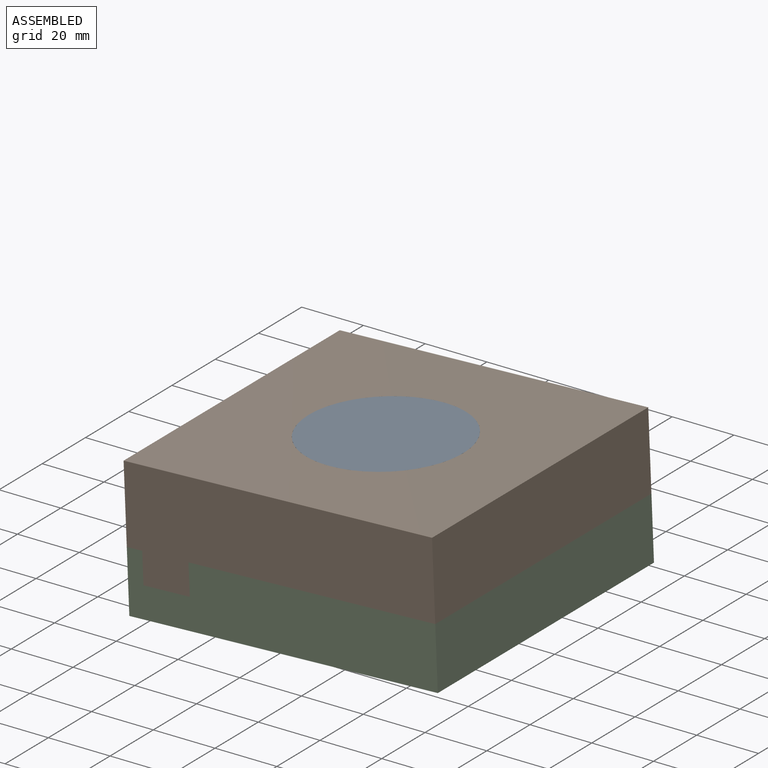
[diagram: assembled view]
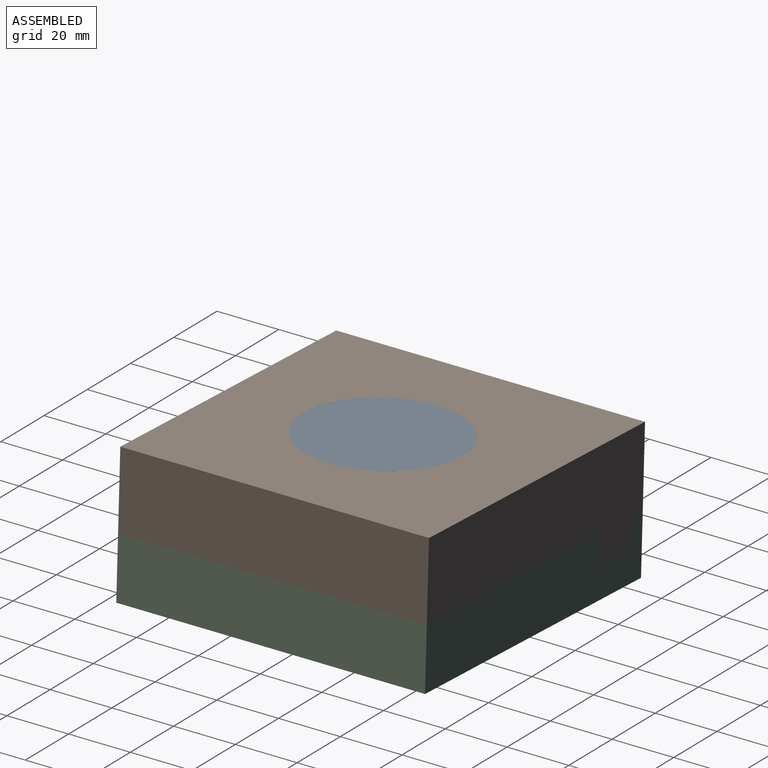
[diagram: assembled view, second angle]
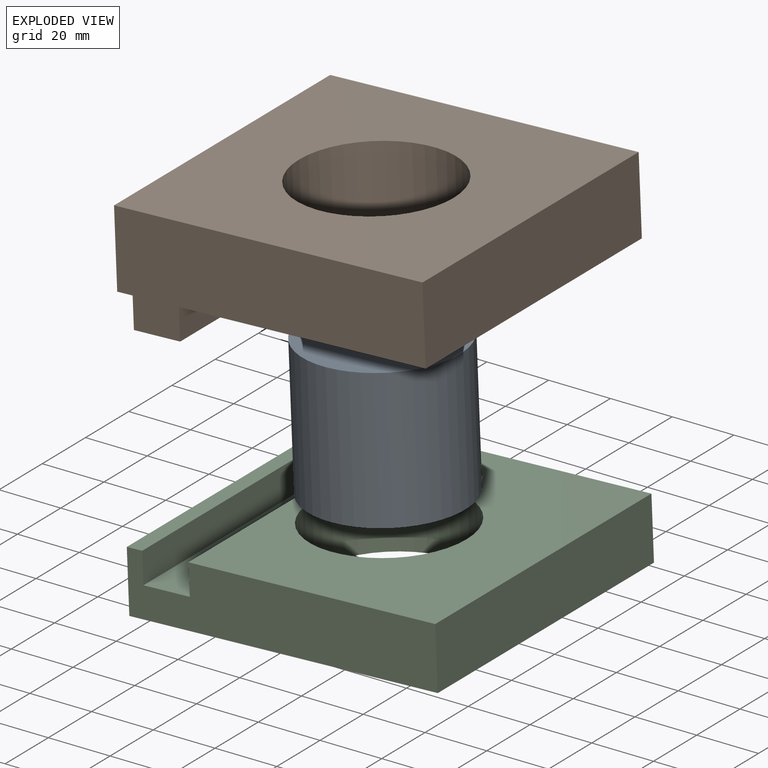
[diagram: exploded view]
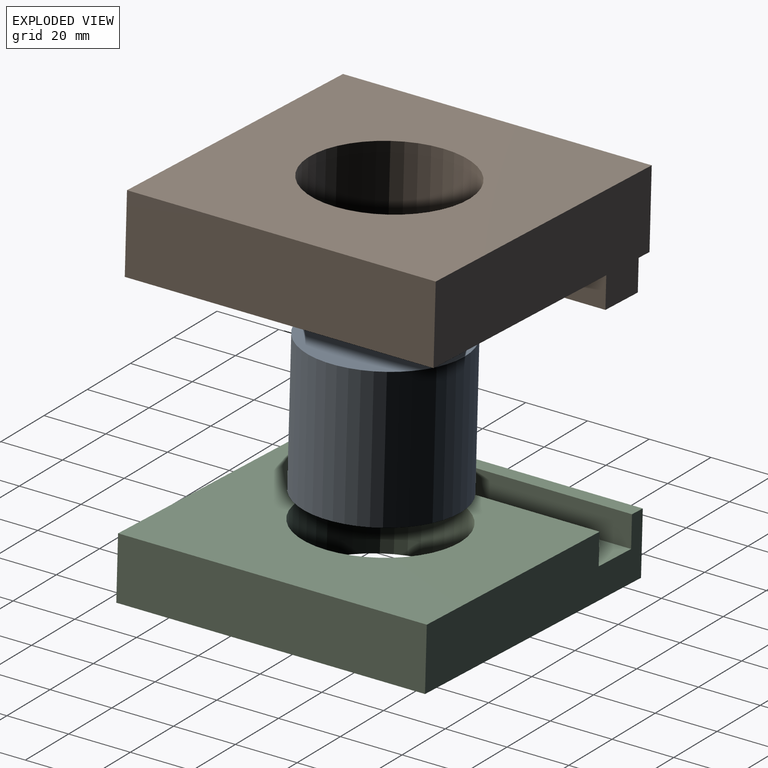
[diagram: exploded view, second angle]
ASSEMBLY  parts=3 mates=2
PART A: 3 faces, bbox 45x50x50 mm
  f0: plane 50x50mm, normal (-1,0,0), area 1963.5mm2, adj f1
  f1: cylinder r=25mm len=50mm, axis (1,0,0), area 7068.6mm2, adj f0,f2
  f2: plane 50x50mm, normal (1,0,0), area 1963.5mm2, adj f1
PART B: 11 faces, bbox 100x100x35 mm
  f0: plane 100x80mm, normal (0,0,-1), area 6036.5mm2, adj f1,f3,f4,f5,f9
  f1: plane 100x35mm, normal (0,1,0), area 2650mm2, adj f0,f2,f5,f6,f7,f8,f9,f10
  f2: plane 100x25mm, normal (-1,0,0), area 2500mm2, adj f1,f3,f6,f7
  f3: plane 100x35mm, normal (0,-1,0), area 2650mm2, adj f0,f2,f5,f6,f7,f8,f9,f10
  f4: cylinder r=25mm len=50mm, axis (0,0,-1), area 3927mm2, adj f0,f6
  f5: plane 100x25mm, normal (1,0,0), area 2500mm2, adj f0,f1,f3,f6
  f6: plane 100x100mm, normal (0,0,1), area 8036.5mm2, adj f1,f2,f3,f4,f5
  f7: plane 100x5mm, normal (0,0,-1), area 500mm2, adj f1,f2,f3,f8
  f8: plane 100x10mm, normal (-1,0,0), area 1000mm2, adj f1,f3,f7,f10
  f9: plane 100x10mm, normal (1,0,0), area 1000mm2, adj f0,f1,f3,f10
  f10: plane 100x15mm, normal (0,0,-1), area 1500mm2, adj f1,f3,f8,f9
PART C: 11 faces, bbox 100x100x20 mm
  f0: plane 100x80mm, normal (0,0,1), area 6036.5mm2, adj f1,f2,f3,f5,f9
  f1: plane 100x20mm, normal (0,-1,0), area 1850mm2, adj f0,f2,f4,f6,f7,f8,f9,f10
  f2: plane 100x20mm, normal (1,0,0), area 2000mm2, adj f0,f1,f3,f7
  f3: plane 100x20mm, normal (0,1,0), area 1850mm2, adj f0,f2,f4,f6,f7,f8,f9,f10
  f4: plane 100x20mm, normal (-1,0,0), area 2000mm2, adj f1,f3,f6,f7
  f5: cylinder r=25mm len=50mm, axis (0,0,-1), area 3141.6mm2, adj f0,f7
  f6: plane 100x5mm, normal (0,0,1), area 500mm2, adj f1,f3,f4,f8
  f7: plane 100x100mm, normal (0,0,-1), area 8036.5mm2, adj f1,f2,f3,f4,f5
  f8: plane 100x10mm, normal (1,0,0), area 1000mm2, adj f1,f3,f6,f10
  f9: plane 100x10mm, normal (-1,0,0), area 1000mm2, adj f0,f1,f3,f10
  f10: plane 100x15mm, normal (0,0,1), area 1500mm2, adj f1,f3,f8,f9
PLACE A rot(axis=(0,1,0),87.6deg) t=(-0.33,0.97,65.51)mm
PLACE B rot(axis=(0,-1,0),2.4deg) t=(25.69,0.97,41.57)mm
PLACE C rot(axis=(0,-1,0),2.4deg) t=(26.52,0.97,21.59)mm
MATE fastened C.f5 <-> A.f1  axis (0.04,0,-1) through (26.52,0.97,21.59)mm
MATE fastened C.f10 <-> B.f10  axis (-0.04,0,1) through (-11.37,0.97,30.03)mm
